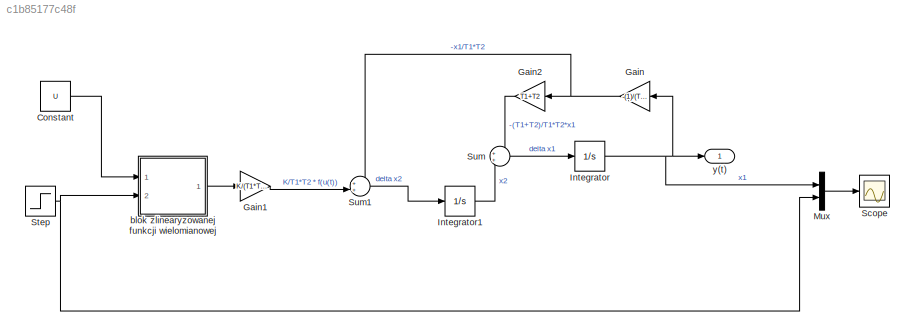
MODEL slx_c1b85177c48f
KIND model
BLOCK [Constant] Constant
  Value = U
BLOCK [Gain] Gain
  Gain = -(1)/(T1*T2)
  OutDataTypeStr = Inherit: Inherit via internal rule
  ParamDataTypeStr = Inherit: Inherit via internal rule
  SaturateOnIntegerOverflow = off
BLOCK [Gain] Gain1
  Gain = K/(T1*T2)
  OutDataTypeStr = Inherit: Inherit via internal rule
  ParamDataTypeStr = Inherit: Inherit via internal rule
  SaturateOnIntegerOverflow = off
BLOCK [Gain] Gain2
  Gain = T1+T2
  OutDataTypeStr = Inherit: Inherit via internal rule
  ParamDataTypeStr = Inherit: Inherit via internal rule
  SaturateOnIntegerOverflow = off
BLOCK [Integrator] Integrator
  ContinuousStateAttributes = 'x1'
  InitialCondition = x1
  Ports = [1, 1]
BLOCK [Integrator] Integrator1
  ContinuousStateAttributes = 'x2'
  InitialCondition = x2
  Ports = [1, 1]
BLOCK [Mux] Mux
  DisplayOption = bar
  Inputs = 2
  Ports = [2, 1]
BLOCK [Scope] Scope
  Floating = off
  NumInputPorts = 1
  Ports = [1]
  ShowLegends = off
  ZoomMode = xonly
BLOCK [Step] Step
  SampleTime = 0
BLOCK [Sum] Sum
  IconShape = round
  InputSameDT = off
  OutDataTypeStr = Inherit: Inherit via internal rule
  Ports = [2, 1]
  SaturateOnIntegerOverflow = off
BLOCK [Sum] Sum1
  IconShape = round
  InputSameDT = off
  Inputs = ++|
  OutDataTypeStr = Inherit: Inherit via internal rule
  Ports = [2, 1]
  SaturateOnIntegerOverflow = off
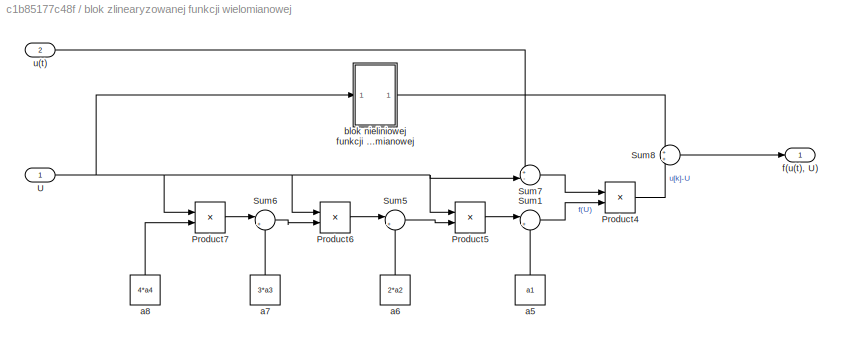
BLOCK [SubSystem] blok zlinearyzowanej funkcji wielomianowej
  Ports = [2, 1]
  RequestExecContextInheritance = off
BLOCK [Product] blok zlinearyzowanej funkcji wielomianowej/Product4
  InputSameDT = off
  OutDataTypeStr = Inherit: Inherit via internal rule
  Ports = [2, 1]
  RndMeth = Floor
  SaturateOnIntegerOverflow = off
BLOCK [Product] blok zlinearyzowanej funkcji wielomianowej/Product5
  InputSameDT = off
  OutDataTypeStr = Inherit: Inherit via internal rule
  Ports = [2, 1]
  RndMeth = Floor
  SaturateOnIntegerOverflow = off
BLOCK [Product] blok zlinearyzowanej funkcji wielomianowej/Product6
  InputSameDT = off
  OutDataTypeStr = Inherit: Inherit via internal rule
  Ports = [2, 1]
  RndMeth = Floor
  SaturateOnIntegerOverflow = off
BLOCK [Product] blok zlinearyzowanej funkcji wielomianowej/Product7
  InputSameDT = off
  OutDataTypeStr = Inherit: Inherit via internal rule
  Ports = [2, 1]
  RndMeth = Floor
  SaturateOnIntegerOverflow = off
BLOCK [Sum] blok zlinearyzowanej funkcji wielomianowej/Sum1
  IconShape = round
  InputSameDT = off
  Inputs = |++
  OutDataTypeStr = Inherit: Inherit via internal rule
  Ports = [2, 1]
  SaturateOnIntegerOverflow = off
BLOCK [Sum] blok zlinearyzowanej funkcji wielomianowej/Sum5
  IconShape = round
  InputSameDT = off
  Inputs = |++
  OutDataTypeStr = Inherit: Inherit via internal rule
  Ports = [2, 1]
  SaturateOnIntegerOverflow = off
BLOCK [Sum] blok zlinearyzowanej funkcji wielomianowej/Sum6
  IconShape = round
  InputSameDT = off
  Inputs = |++
  OutDataTypeStr = Inherit: Inherit via internal rule
  Ports = [2, 1]
  SaturateOnIntegerOverflow = off
BLOCK [Sum] blok zlinearyzowanej funkcji wielomianowej/Sum7
  IconShape = round
  InputSameDT = off
  Inputs = +-|
  OutDataTypeStr = Inherit: Inherit via internal rule
  Ports = [2, 1]
  SaturateOnIntegerOverflow = off
BLOCK [Sum] blok zlinearyzowanej funkcji wielomianowej/Sum8
  IconShape = round
  InputSameDT = off
  OutDataTypeStr = Inherit: Inherit via internal rule
  Ports = [2, 1]
  SaturateOnIntegerOverflow = off
BLOCK [Inport] blok zlinearyzowanej funkcji wielomianowej/U
  IconDisplay = Port number
BLOCK [Constant] blok zlinearyzowanej funkcji wielomianowej/a5
  Value = a1
BLOCK [Constant] blok zlinearyzowanej funkcji wielomianowej/a6
  Value = 2*a2
BLOCK [Constant] blok zlinearyzowanej funkcji wielomianowej/a7
  Value = 3*a3
BLOCK [Constant] blok zlinearyzowanej funkcji wielomianowej/a8
  Value = 4*a4
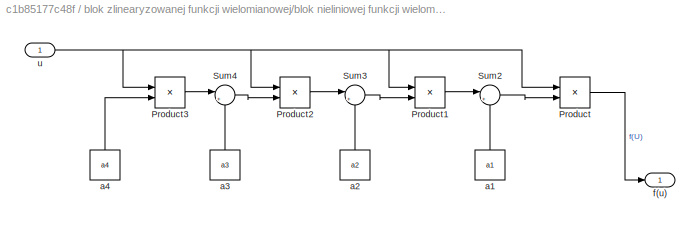
BLOCK [SubSystem] blok zlinearyzowanej funkcji wielomianowej/blok nieliniowej funkcji wielomianowej
  Ports = [1, 1]
  RequestExecContextInheritance = off
BLOCK [Product] blok zlinearyzowanej funkcji wielomianowej/blok nieliniowej funkcji wielomianowej/Product
  InputSameDT = off
  OutDataTypeStr = Inherit: Inherit via internal rule
  Ports = [2, 1]
  RndMeth = Floor
  SaturateOnIntegerOverflow = off
BLOCK [Product] blok zlinearyzowanej funkcji wielomianowej/blok nieliniowej funkcji wielomianowej/Product1
  InputSameDT = off
  OutDataTypeStr = Inherit: Inherit via internal rule
  Ports = [2, 1]
  RndMeth = Floor
  SaturateOnIntegerOverflow = off
BLOCK [Product] blok zlinearyzowanej funkcji wielomianowej/blok nieliniowej funkcji wielomianowej/Product2
  InputSameDT = off
  OutDataTypeStr = Inherit: Inherit via internal rule
  Ports = [2, 1]
  RndMeth = Floor
  SaturateOnIntegerOverflow = off
BLOCK [Product] blok zlinearyzowanej funkcji wielomianowej/blok nieliniowej funkcji wielomianowej/Product3
  InputSameDT = off
  OutDataTypeStr = Inherit: Inherit via internal rule
  Ports = [2, 1]
  RndMeth = Floor
  SaturateOnIntegerOverflow = off
BLOCK [Sum] blok zlinearyzowanej funkcji wielomianowej/blok nieliniowej funkcji wielomianowej/Sum2
  IconShape = round
  InputSameDT = off
  Inputs = |++
  OutDataTypeStr = Inherit: Inherit via internal rule
  Ports = [2, 1]
  SaturateOnIntegerOverflow = off
BLOCK [Sum] blok zlinearyzowanej funkcji wielomianowej/blok nieliniowej funkcji wielomianowej/Sum3
  IconShape = round
  InputSameDT = off
  Inputs = |++
  OutDataTypeStr = Inherit: Inherit via internal rule
  Ports = [2, 1]
  SaturateOnIntegerOverflow = off
BLOCK [Sum] blok zlinearyzowanej funkcji wielomianowej/blok nieliniowej funkcji wielomianowej/Sum4
  IconShape = round
  InputSameDT = off
  Inputs = |++
  OutDataTypeStr = Inherit: Inherit via internal rule
  Ports = [2, 1]
  SaturateOnIntegerOverflow = off
BLOCK [Constant] blok zlinearyzowanej funkcji wielomianowej/blok nieliniowej funkcji wielomianowej/a1
  Value = a1
BLOCK [Constant] blok zlinearyzowanej funkcji wielomianowej/blok nieliniowej funkcji wielomianowej/a2
  Value = a2
BLOCK [Constant] blok zlinearyzowanej funkcji wielomianowej/blok nieliniowej funkcji wielomianowej/a3
  Value = a3
BLOCK [Constant] blok zlinearyzowanej funkcji wielomianowej/blok nieliniowej funkcji wielomianowej/a4
  Value = a4
BLOCK [Outport] blok zlinearyzowanej funkcji wielomianowej/blok nieliniowej funkcji wielomianowej/f(u)
  IconDisplay = Port number
BLOCK [Inport] blok zlinearyzowanej funkcji wielomianowej/blok nieliniowej funkcji wielomianowej/u
  IconDisplay = Port number
BLOCK [Outport] blok zlinearyzowanej funkcji wielomianowej/f(u(t), U)
  IconDisplay = Port number
BLOCK [Inport] blok zlinearyzowanej funkcji wielomianowej/u(t)
  IconDisplay = Port number
  Port = 2
BLOCK [Outport] y(t)
  IconDisplay = Port number
LINE Constant:1 -> blok zlinearyzowanej funkcji wielomianowej:1
LINE Gain1:1 -> Sum1:2
LINE Gain2:1 -> Sum:1
NET Gain:1 -> Gain2:1, Sum1:1
LINE Integrator1:1 -> Sum:2
NET Integrator:1 -> Gain:1, Mux:1, y(t):1
LINE Mux:1 -> Scope:1
NET Step:1 -> Mux:2, blok zlinearyzowanej funkcji wielomianowej:2
LINE Sum1:1 -> Integrator1:1
LINE Sum:1 -> Integrator:1
LINE blok zlinearyzowanej funkcji wielomianowej/Product4:1 -> blok zlinearyzowanej funkcji wielomianowej/Sum8:2
LINE blok zlinearyzowanej funkcji wielomianowej/Product5:1 -> blok zlinearyzowanej funkcji wielomianowej/Sum1:1
LINE blok zlinearyzowanej funkcji wielomianowej/Product6:1 -> blok zlinearyzowanej funkcji wielomianowej/Sum5:1
LINE blok zlinearyzowanej funkcji wielomianowej/Product7:1 -> blok zlinearyzowanej funkcji wielomianowej/Sum6:1
LINE blok zlinearyzowanej funkcji wielomianowej/Sum1:1 -> blok zlinearyzowanej funkcji wielomianowej/Product4:2
LINE blok zlinearyzowanej funkcji wielomianowej/Sum5:1 -> blok zlinearyzowanej funkcji wielomianowej/Product5:2
LINE blok zlinearyzowanej funkcji wielomianowej/Sum6:1 -> blok zlinearyzowanej funkcji wielomianowej/Product6:2
LINE blok zlinearyzowanej funkcji wielomianowej/Sum7:1 -> blok zlinearyzowanej funkcji wielomianowej/Product4:1
LINE blok zlinearyzowanej funkcji wielomianowej/Sum8:1 -> blok zlinearyzowanej funkcji wielomianowej/f(u(t), U):1
NET blok zlinearyzowanej funkcji wielomianowej/U:1 -> blok zlinearyzowanej funkcji wielomianowej/Product5:1, blok zlinearyzowanej funkcji wielomianowej/Product6:1, blok zlinearyzowanej funkcji wielomianowej/Product7:1, blok zlinearyzowanej funkcji wielomianowej/Sum7:2, blok zlinearyzowanej funkcji wielomianowej/blok nieliniowej funkcji wielomianowej:1
LINE blok zlinearyzowanej funkcji wielomianowej/a5:1 -> blok zlinearyzowanej funkcji wielomianowej/Sum1:2
LINE blok zlinearyzowanej funkcji wielomianowej/a6:1 -> blok zlinearyzowanej funkcji wielomianowej/Sum5:2
LINE blok zlinearyzowanej funkcji wielomianowej/a7:1 -> blok zlinearyzowanej funkcji wielomianowej/Sum6:2
LINE blok zlinearyzowanej funkcji wielomianowej/a8:1 -> blok zlinearyzowanej funkcji wielomianowej/Product7:2
LINE blok zlinearyzowanej funkcji wielomianowej/blok nieliniowej funkcji wielomianowej/Product1:1 -> blok zlinearyzowanej funkcji wielomianowej/blok nieliniowej funkcji wielomianowej/Sum2:1
LINE blok zlinearyzowanej funkcji wielomianowej/blok nieliniowej funkcji wielomianowej/Product2:1 -> blok zlinearyzowanej funkcji wielomianowej/blok nieliniowej funkcji wielomianowej/Sum3:1
LINE blok zlinearyzowanej funkcji wielomianowej/blok nieliniowej funkcji wielomianowej/Product3:1 -> blok zlinearyzowanej funkcji wielomianowej/blok nieliniowej funkcji wielomianowej/Sum4:1
LINE blok zlinearyzowanej funkcji wielomianowej/blok nieliniowej funkcji wielomianowej/Product:1 -> blok zlinearyzowanej funkcji wielomianowej/blok nieliniowej funkcji wielomianowej/f(u):1
LINE blok zlinearyzowanej funkcji wielomianowej/blok nieliniowej funkcji wielomianowej/Sum2:1 -> blok zlinearyzowanej funkcji wielomianowej/blok nieliniowej funkcji wielomianowej/Product:2
LINE blok zlinearyzowanej funkcji wielomianowej/blok nieliniowej funkcji wielomianowej/Sum3:1 -> blok zlinearyzowanej funkcji wielomianowej/blok nieliniowej funkcji wielomianowej/Product1:2
LINE blok zlinearyzowanej funkcji wielomianowej/blok nieliniowej funkcji wielomianowej/Sum4:1 -> blok zlinearyzowanej funkcji wielomianowej/blok nieliniowej funkcji wielomianowej/Product2:2
LINE blok zlinearyzowanej funkcji wielomianowej/blok nieliniowej funkcji wielomianowej/a1:1 -> blok zlinearyzowanej funkcji wielomianowej/blok nieliniowej funkcji wielomianowej/Sum2:2
LINE blok zlinearyzowanej funkcji wielomianowej/blok nieliniowej funkcji wielomianowej/a2:1 -> blok zlinearyzowanej funkcji wielomianowej/blok nieliniowej funkcji wielomianowej/Sum3:2
LINE blok zlinearyzowanej funkcji wielomianowej/blok nieliniowej funkcji wielomianowej/a3:1 -> blok zlinearyzowanej funkcji wielomianowej/blok nieliniowej funkcji wielomianowej/Sum4:2
LINE blok zlinearyzowanej funkcji wielomianowej/blok nieliniowej funkcji wielomianowej/a4:1 -> blok zlinearyzowanej funkcji wielomianowej/blok nieliniowej funkcji wielomianowej/Product3:2
NET blok zlinearyzowanej funkcji wielomianowej/blok nieliniowej funkcji wielomianowej/u:1 -> blok zlinearyzowanej funkcji wielomianowej/blok nieliniowej funkcji wielomianowej/Product1:1, blok zlinearyzowanej funkcji wielomianowej/blok nieliniowej funkcji wielomianowej/Product2:1, blok zlinearyzowanej funkcji wielomianowej/blok nieliniowej funkcji wielomianowej/Product3:1, blok zlinearyzowanej funkcji wielomianowej/blok nieliniowej funkcji wielomianowej/Product:1
LINE blok zlinearyzowanej funkcji wielomianowej/blok nieliniowej funkcji wielomianowej:1 -> blok zlinearyzowanej funkcji wielomianowej/Sum8:1
LINE blok zlinearyzowanej funkcji wielomianowej/u(t):1 -> blok zlinearyzowanej funkcji wielomianowej/Sum7:1
LINE blok zlinearyzowanej funkcji wielomianowej:1 -> Gain1:1
note: NET lines group one-source signal fan-out (src -> all destinations, sorted); 1:1 wires keep LINE
